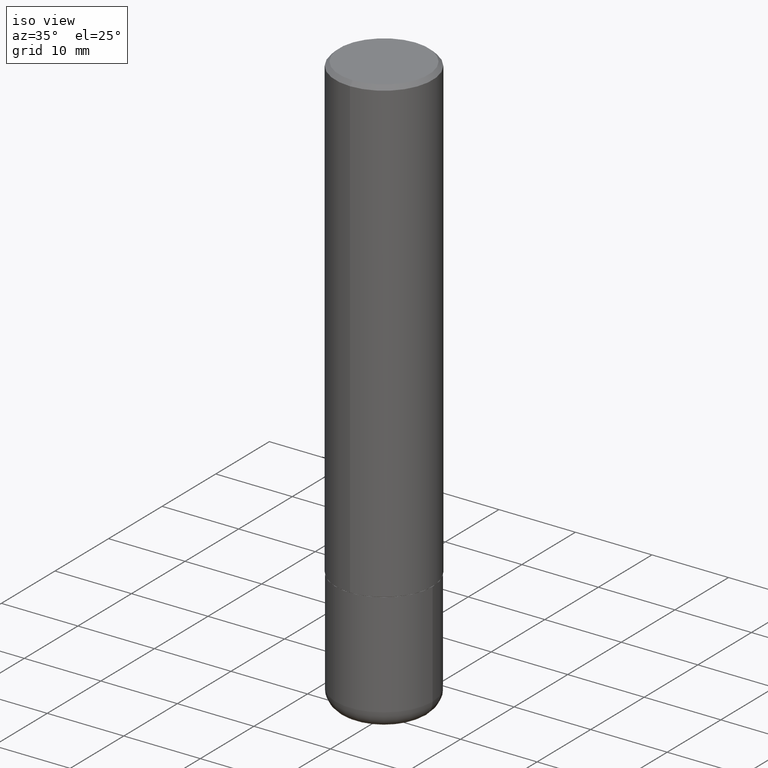
[diagram: clean part render]
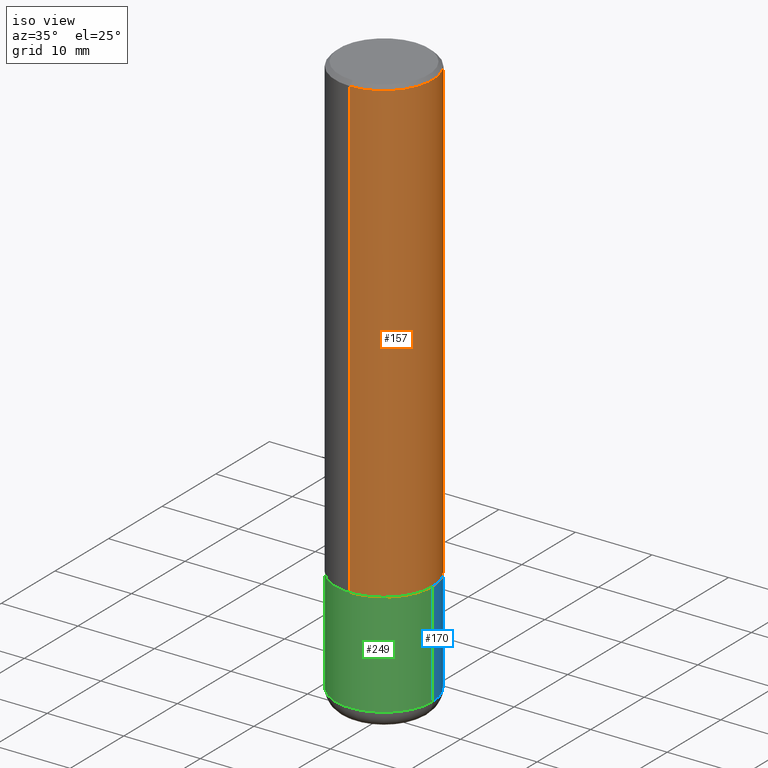
[diagram: same view with three faces highlighted in distinct colors, each labeled with its STEP entity id]
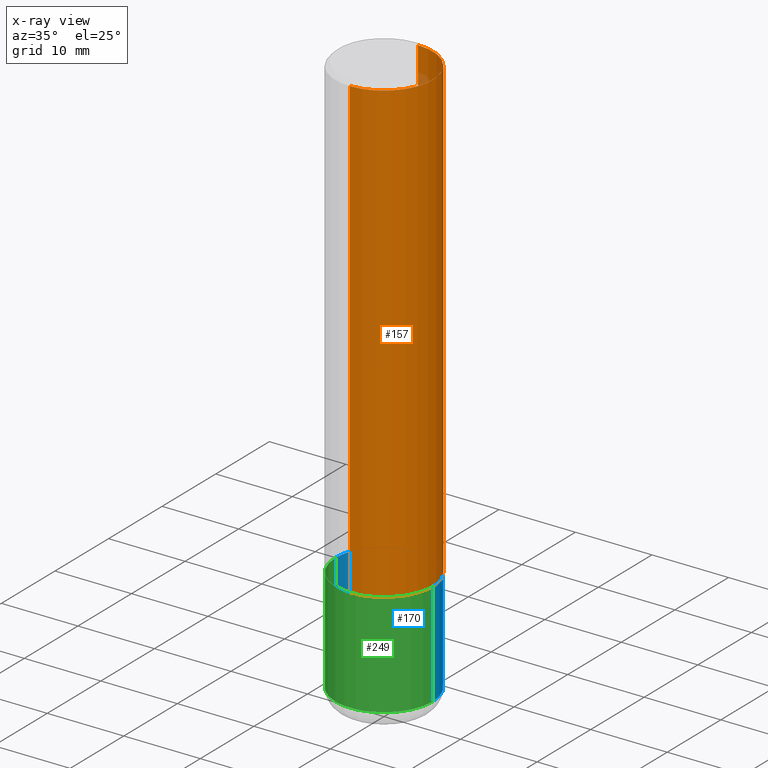
[diagram: x-ray of the same camera — body ghosted, the three highlighted faces saturated]
A machine part, iso view with three faces highlighted in distinct colors.
The next image is the same camera in x-ray (body ghosted, the three faces saturated) — at least one of them is partly hidden behind the body in this view.
Their STEP definitions:

[orange] entity #157 — the highlighted cylindrical surface (partial cylindrical patch) has radius 6.35 mm, axis along (-0, 0, 1).
#9 = DIRECTION ( 'NONE',  ( -6.982962677686266711E-15, -1.000000000000000000, 3.491974475474889733E-15 ) ) ;
#48 = LINE ( 'NONE', #112, #110 ) ;
#50 = ORIENTED_EDGE ( 'NONE', *, *, #183, .F. ) ;
#51 = CIRCLE ( 'NONE', #81, 0.2499999999999999722 ) ;
#52 = DIRECTION ( 'NONE',  ( -2.445124450715689953E-29, 3.491974475474889339E-15, 1.000000000000000000 ) ) ;
#53 = EDGE_CURVE ( 'NONE', #59, #414, #48, .T. ) ;
#59 = VERTEX_POINT ( 'NONE', #243 ) ;
#81 = AXIS2_PLACEMENT_3D ( 'NONE', #180, #404, #302 ) ;
#83 = EDGE_CURVE ( 'NONE', #114, #414, #51, .T. ) ;
#85 = CARTESIAN_POINT ( 'NONE',  ( 0.000000000000000000, 0.000000000000000000, 0.000000000000000000 ) ) ;
#110 = VECTOR ( 'NONE', #409, 39.37007874015748143 ) ;
#111 = CARTESIAN_POINT ( 'NONE',  ( -1.745740669421567467E-15, -0.2500000000000001110, 8.729936188687228278E-16 ) ) ;
#112 = CARTESIAN_POINT ( 'NONE',  ( 1.776356839400251254E-15, 0.2500000000000001110, -8.729936188687228278E-16 ) ) ;
#114 = VERTEX_POINT ( 'NONE', #225 ) ;
#124 = ORIENTED_EDGE ( 'NONE', *, *, #53, .T. ) ;
#140 = CARTESIAN_POINT ( 'NONE',  ( -1.745740669421510471E-15, -0.2500000000000085487, -2.373999999999999222 ) ) ;
#142 = CARTESIAN_POINT ( 'NONE',  ( 1.745740669421566678E-15, 0.2499999999999998890, -0.02000000000000096839 ) ) ;
#147 = DIRECTION ( 'NONE',  ( -2.445124450715689953E-29, 3.491974475474889339E-15, 1.000000000000000000 ) ) ;
#157 = ADVANCED_FACE ( 'NONE', ( #413 ), #362, .T. ) ;
#158 = EDGE_LOOP ( 'NONE', ( #314, #124, #391, #50 ) ) ;
#169 = CARTESIAN_POINT ( 'NONE',  ( 5.804725445999048016E-29, -8.289947404777387606E-15, -2.374000000000000110 ) ) ;
#176 = VERTEX_POINT ( 'NONE', #140 ) ;
#180 = CARTESIAN_POINT ( 'NONE',  ( 4.890248901431403027E-31, -6.983948950949810725E-17, -0.02000000000000009409 ) ) ;
#183 = EDGE_CURVE ( 'NONE', #176, #114, #401, .T. ) ;
#202 = EDGE_CURVE ( 'NONE', #176, #59, #293, .T. ) ;
#225 = CARTESIAN_POINT ( 'NONE',  ( -1.715124499442881905E-15, -0.2500000000000000555, -0.01999999999999921979 ) ) ;
#231 = DIRECTION ( 'NONE',  ( -2.445124450715689673E-29, 3.491974475474889339E-15, 1.000000000000000000 ) ) ;
#243 = CARTESIAN_POINT ( 'NONE',  ( 1.776356839400280836E-15, 0.2499999999999919786, -2.374000000000000998 ) ) ;
#284 = AXIS2_PLACEMENT_3D ( 'NONE', #85, #52, #9 ) ;
#293 = CIRCLE ( 'NONE', #299, 0.2500000000000002776 ) ;
#299 = AXIS2_PLACEMENT_3D ( 'NONE', #169, #147, #337 ) ;
#302 = DIRECTION ( 'NONE',  ( -6.982962677686265922E-15, -1.000000000000000000, 3.500180241882337655E-15 ) ) ;
#314 = ORIENTED_EDGE ( 'NONE', *, *, #202, .T. ) ;
#319 = VECTOR ( 'NONE', #231, 39.37007874015748143 ) ;
#337 = DIRECTION ( 'NONE',  ( -6.982962677686265922E-15, -1.000000000000000000, 3.278217592397112312E-15 ) ) ;
#362 = CYLINDRICAL_SURFACE ( 'NONE', #284, 0.2500000000000001110 ) ;
#391 = ORIENTED_EDGE ( 'NONE', *, *, #83, .F. ) ;
#401 = LINE ( 'NONE', #111, #319 ) ;
#404 = DIRECTION ( 'NONE',  ( -2.445124450715689953E-29, 3.491974475474889339E-15, 1.000000000000000000 ) ) ;
#409 = DIRECTION ( 'NONE',  ( -2.445124450715689673E-29, 3.491974475474889339E-15, 1.000000000000000000 ) ) ;
#413 = FACE_OUTER_BOUND ( 'NONE', #158, .T. ) ;
#414 = VERTEX_POINT ( 'NONE', #142 ) ;

[blue] entity #170 — the highlighted cylindrical surface (partial cylindrical patch) has radius 6.35 mm, axis along (-0, 0, 1).
#16 = LINE ( 'NONE', #275, #31 ) ;
#20 = AXIS2_PLACEMENT_3D ( 'NONE', #407, #242, #221 ) ;
#21 = DIRECTION ( 'NONE',  ( 1.000000000000000000, -6.982962677686269077E-15, 0.000000000000000000 ) ) ;
#28 = DIRECTION ( 'NONE',  ( -2.445468806185136877E-29, 3.491481338843145188E-15, 1.000000000000000000 ) ) ;
#31 = VECTOR ( 'NONE', #379, 39.37007874015748143 ) ;
#39 = DIRECTION ( 'NONE',  ( 1.000000000000000000, -6.982962677686266711E-15, 4.876176775795935793E-29 ) ) ;
#56 = ORIENTED_EDGE ( 'NONE', *, *, #346, .T. ) ;
#63 = EDGE_LOOP ( 'NONE', ( #56, #354, #191, #69 ) ) ;
#69 = ORIENTED_EDGE ( 'NONE', *, *, #265, .F. ) ;
#74 = CARTESIAN_POINT ( 'NONE',  ( -0.2499999999999998612, -8.383853856633305780E-15, -2.910000000000000586 ) ) ;
#84 = EDGE_CURVE ( 'NONE', #381, #279, #16, .T. ) ;
#100 = LINE ( 'NONE', #210, #128 ) ;
#113 = CARTESIAN_POINT ( 'NONE',  ( 0.2499999999999998612, -1.190595136545512292E-14, -2.910000000000000586 ) ) ;
#128 = VECTOR ( 'NONE', #28, 39.37007874015748143 ) ;
#161 = CIRCLE ( 'NONE', #20, 0.2500000000000000000 ) ;
#170 = ADVANCED_FACE ( 'NONE', ( #403 ), #234, .T. ) ;
#179 = CARTESIAN_POINT ( 'NONE',  ( 0.2500000000000000000, -1.003800884917403837E-14, -2.375000000000000000 ) ) ;
#184 = CARTESIAN_POINT ( 'NONE',  ( 7.116314225998749245E-29, -1.016021069603355467E-14, -2.910000000000000586 ) ) ;
#191 = ORIENTED_EDGE ( 'NONE', *, *, #260, .F. ) ;
#209 = VERTEX_POINT ( 'NONE', #113 ) ;
#210 = CARTESIAN_POINT ( 'NONE',  ( 0.2500000000000000000, -1.745740669421566678E-15, 1.219044193948983948E-29 ) ) ;
#215 = VERTEX_POINT ( 'NONE', #179 ) ;
#219 = CIRCLE ( 'NONE', #375, 0.2500000000000000555 ) ;
#221 = DIRECTION ( 'NONE',  ( 1.000000000000000000, -6.982962677686266711E-15, 0.000000000000000000 ) ) ;
#234 = CYLINDRICAL_SURFACE ( 'NONE', #262, 0.2500000000000000000 ) ;
#242 = DIRECTION ( 'NONE',  ( -2.445468806185136597E-29, 3.491481338843145583E-15, 1.000000000000000000 ) ) ;
#260 = EDGE_CURVE ( 'NONE', #215, #279, #161, .T. ) ;
#262 = AXIS2_PLACEMENT_3D ( 'NONE', #295, #266, #39 ) ;
#265 = EDGE_CURVE ( 'NONE', #209, #215, #100, .T. ) ;
#266 = DIRECTION ( 'NONE',  ( -2.445468806185136597E-29, 3.491481338843145583E-15, 1.000000000000000000 ) ) ;
#275 = CARTESIAN_POINT ( 'NONE',  ( -0.2500000000000000000, 1.776356839400250465E-15, -1.229733772563726445E-29 ) ) ;
#279 = VERTEX_POINT ( 'NONE', #352 ) ;
#295 = CARTESIAN_POINT ( 'NONE',  ( 0.000000000000000000, 0.000000000000000000, 0.000000000000000000 ) ) ;
#307 = DIRECTION ( 'NONE',  ( -2.445468806185136597E-29, 3.491481338843145583E-15, 1.000000000000000000 ) ) ;
#346 = EDGE_CURVE ( 'NONE', #209, #381, #219, .T. ) ;
#352 = CARTESIAN_POINT ( 'NONE',  ( -0.2500000000000000000, -7.449882598492762717E-15, -2.375000000000000000 ) ) ;
#354 = ORIENTED_EDGE ( 'NONE', *, *, #84, .T. ) ;
#375 = AXIS2_PLACEMENT_3D ( 'NONE', #184, #307, #21 ) ;
#379 = DIRECTION ( 'NONE',  ( -2.445468806185136877E-29, 3.491481338843145188E-15, 1.000000000000000000 ) ) ;
#381 = VERTEX_POINT ( 'NONE', #74 ) ;
#403 = FACE_OUTER_BOUND ( 'NONE', #63, .T. ) ;
#407 = CARTESIAN_POINT ( 'NONE',  ( 5.807988414689700538E-29, -8.292268179752471696E-15, -2.375000000000000000 ) ) ;

[green] entity #249 — the highlighted cylindrical surface (partial cylindrical patch) has radius 6.35 mm, axis along (-0, 0, 1).
#16 = LINE ( 'NONE', #275, #31 ) ;
#17 = EDGE_CURVE ( 'NONE', #279, #215, #240, .T. ) ;
#28 = DIRECTION ( 'NONE',  ( -2.445468806185136877E-29, 3.491481338843145188E-15, 1.000000000000000000 ) ) ;
#31 = VECTOR ( 'NONE', #379, 39.37007874015748143 ) ;
#55 = FACE_OUTER_BOUND ( 'NONE', #351, .T. ) ;
#57 = DIRECTION ( 'NONE',  ( 1.000000000000000000, -6.982962677686269077E-15, 0.000000000000000000 ) ) ;
#58 = DIRECTION ( 'NONE',  ( -2.445468806185136597E-29, 3.491481338843145583E-15, 1.000000000000000000 ) ) ;
#64 = DIRECTION ( 'NONE',  ( 1.000000000000000000, -6.982962677686266711E-15, 4.876176775795935793E-29 ) ) ;
#74 = CARTESIAN_POINT ( 'NONE',  ( -0.2499999999999998612, -8.383853856633305780E-15, -2.910000000000000586 ) ) ;
#84 = EDGE_CURVE ( 'NONE', #381, #279, #16, .T. ) ;
#88 = ORIENTED_EDGE ( 'NONE', *, *, #17, .F. ) ;
#93 = ORIENTED_EDGE ( 'NONE', *, *, #84, .F. ) ;
#100 = LINE ( 'NONE', #210, #128 ) ;
#113 = CARTESIAN_POINT ( 'NONE',  ( 0.2499999999999998612, -1.190595136545512292E-14, -2.910000000000000586 ) ) ;
#128 = VECTOR ( 'NONE', #28, 39.37007874015748143 ) ;
#179 = CARTESIAN_POINT ( 'NONE',  ( 0.2500000000000000000, -1.003800884917403837E-14, -2.375000000000000000 ) ) ;
#181 = CARTESIAN_POINT ( 'NONE',  ( 7.116314225998749245E-29, -1.016021069603355467E-14, -2.910000000000000586 ) ) ;
#182 = ORIENTED_EDGE ( 'NONE', *, *, #265, .T. ) ;
#209 = VERTEX_POINT ( 'NONE', #113 ) ;
#210 = CARTESIAN_POINT ( 'NONE',  ( 0.2500000000000000000, -1.745740669421566678E-15, 1.219044193948983948E-29 ) ) ;
#215 = VERTEX_POINT ( 'NONE', #179 ) ;
#240 = CIRCLE ( 'NONE', #387, 0.2500000000000000000 ) ;
#245 = DIRECTION ( 'NONE',  ( 1.000000000000000000, -6.982962677686266711E-15, 0.000000000000000000 ) ) ;
#249 = ADVANCED_FACE ( 'NONE', ( #55 ), #390, .T. ) ;
#265 = EDGE_CURVE ( 'NONE', #209, #215, #100, .T. ) ;
#274 = AXIS2_PLACEMENT_3D ( 'NONE', #415, #283, #64 ) ;
#275 = CARTESIAN_POINT ( 'NONE',  ( -0.2500000000000000000, 1.776356839400250465E-15, -1.229733772563726445E-29 ) ) ;
#279 = VERTEX_POINT ( 'NONE', #352 ) ;
#282 = ORIENTED_EDGE ( 'NONE', *, *, #296, .T. ) ;
#283 = DIRECTION ( 'NONE',  ( -2.445468806185136597E-29, 3.491481338843145583E-15, 1.000000000000000000 ) ) ;
#296 = EDGE_CURVE ( 'NONE', #381, #209, #408, .T. ) ;
#312 = DIRECTION ( 'NONE',  ( -2.445468806185136597E-29, 3.491481338843145583E-15, 1.000000000000000000 ) ) ;
#350 = AXIS2_PLACEMENT_3D ( 'NONE', #181, #312, #57 ) ;
#351 = EDGE_LOOP ( 'NONE', ( #93, #282, #182, #88 ) ) ;
#352 = CARTESIAN_POINT ( 'NONE',  ( -0.2500000000000000000, -7.449882598492762717E-15, -2.375000000000000000 ) ) ;
#379 = DIRECTION ( 'NONE',  ( -2.445468806185136877E-29, 3.491481338843145188E-15, 1.000000000000000000 ) ) ;
#381 = VERTEX_POINT ( 'NONE', #74 ) ;
#383 = CARTESIAN_POINT ( 'NONE',  ( 5.807988414689700538E-29, -8.292268179752471696E-15, -2.375000000000000000 ) ) ;
#387 = AXIS2_PLACEMENT_3D ( 'NONE', #383, #58, #245 ) ;
#390 = CYLINDRICAL_SURFACE ( 'NONE', #274, 0.2500000000000000000 ) ;
#408 = CIRCLE ( 'NONE', #350, 0.2500000000000000555 ) ;
#415 = CARTESIAN_POINT ( 'NONE',  ( 0.000000000000000000, 0.000000000000000000, 0.000000000000000000 ) ) ;